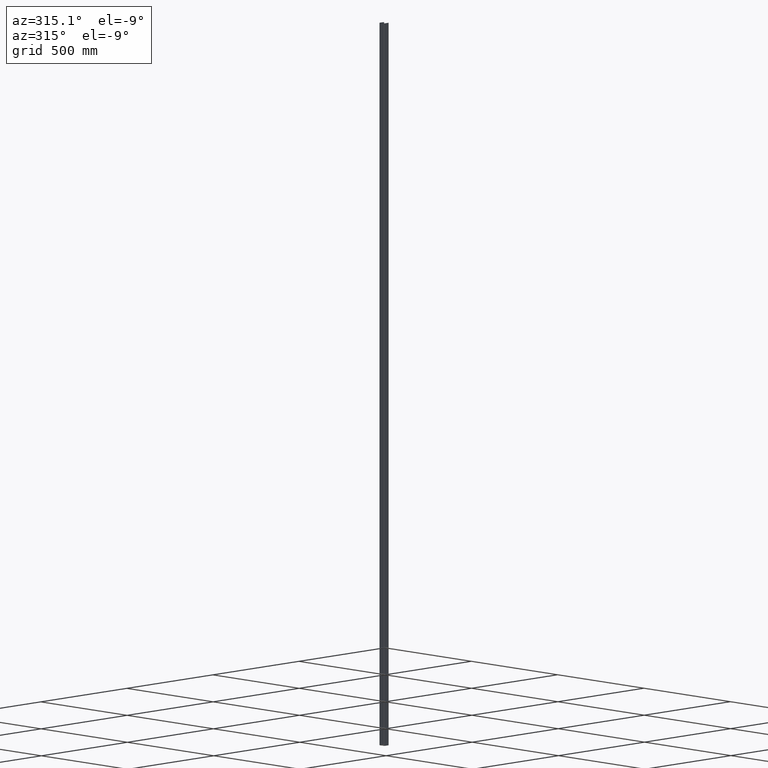
[diagram: clean part render]
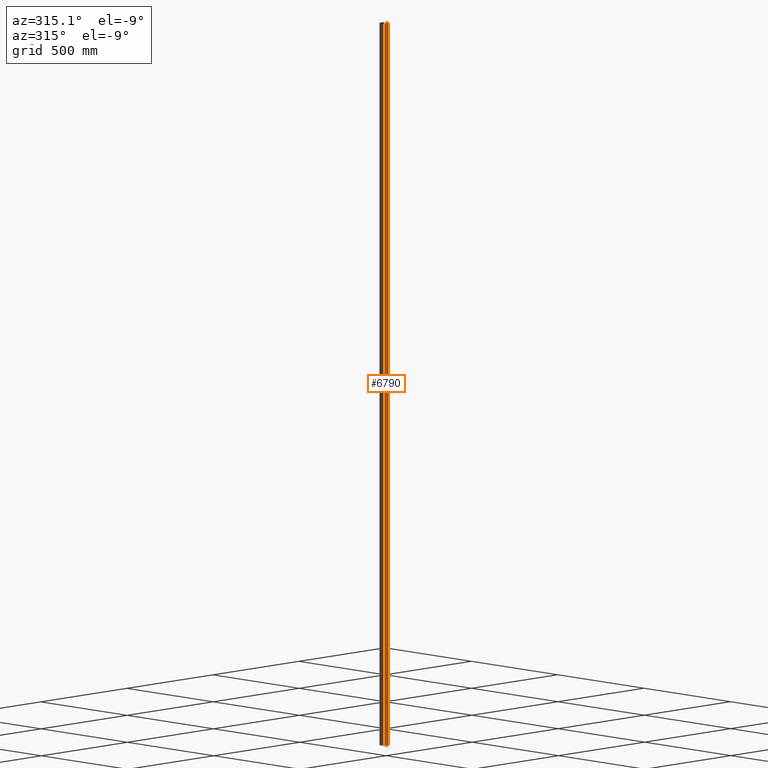
[diagram: same view with one face highlighted and labeled with its STEP entity id]
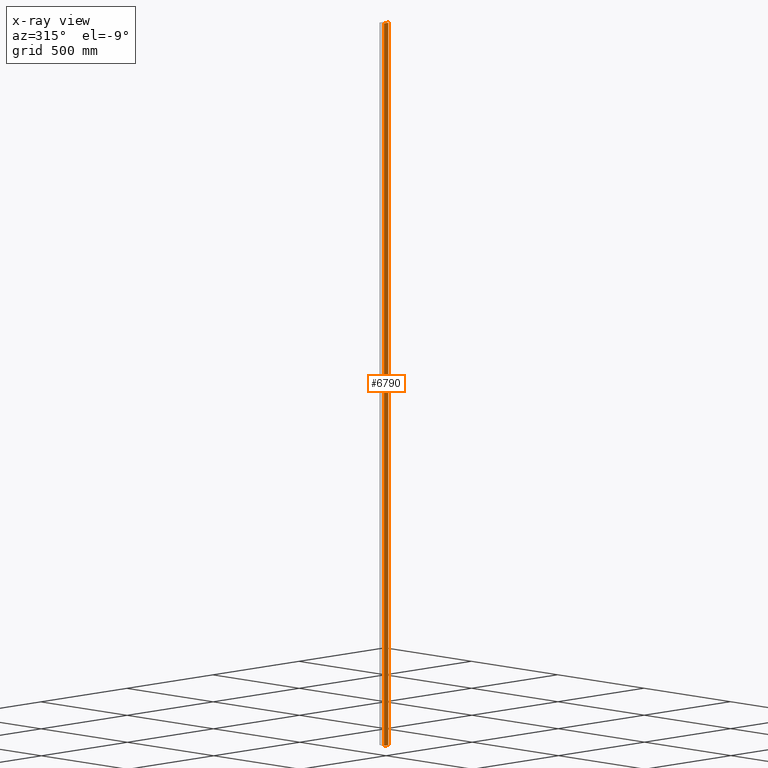
[diagram: x-ray of the same camera — body ghosted, the highlighted face saturated]
A machine part, auxiliary view. The second image highlights one B-rep face of the part: STEP entity #6790.
The next image is the same camera in x-ray: the body ghosted, the highlighted face saturated — about 0% of this face is hidden behind the body in this view.
In plain terms, the highlighted planar face has unit normal (1, 0, -0).
Its self-contained STEP definition (entity closure, byte-faithful):
#510 = VECTOR ( 'NONE', #12719, 1000.000000000000000 ) ;
#1048 = CARTESIAN_POINT ( 'NONE',  ( 12.00000000000000000, 0.5000000000000031086, 1500.000000000000000 ) ) ;
#2604 = EDGE_CURVE ( 'NONE', #8325, #9796, #3773, .T. ) ;
#3560 = CARTESIAN_POINT ( 'NONE',  ( 12.00000000000000000, 0.5000000000000031086, 1500.000000000000000 ) ) ;
#3592 = ORIENTED_EDGE ( 'NONE', *, *, #11584, .F. ) ;
#3773 = LINE ( 'NONE', #12977, #9744 ) ;
#4141 = PLANE ( 'NONE',  #7985 ) ;
#4276 = ORIENTED_EDGE ( 'NONE', *, *, #8765, .T. ) ;
#4388 = EDGE_CURVE ( 'NONE', #8470, #5076, #8716, .T. ) ;
#4793 = DIRECTION ( 'NONE',  ( -0.000000000000000000, -0.000000000000000000, -1.000000000000000000 ) ) ;
#5056 = CARTESIAN_POINT ( 'NONE',  ( 12.00000000000000000, 0.5000000000000031086, -1500.000000000000000 ) ) ;
#5076 = VERTEX_POINT ( 'NONE', #5056 ) ;
#5078 = DIRECTION ( 'NONE',  ( -7.381802025433222780E-17, 1.000000000000000000, 0.000000000000000000 ) ) ;
#5466 = ORIENTED_EDGE ( 'NONE', *, *, #2604, .T. ) ;
#5805 = CARTESIAN_POINT ( 'NONE',  ( 11.99999999999999822, 23.99999999999999645, 1500.000000000000000 ) ) ;
#5957 = FACE_OUTER_BOUND ( 'NONE', #12041, .T. ) ;
#6271 = CARTESIAN_POINT ( 'NONE',  ( 11.99999999999999822, 23.99999999999999645, 1500.000000000000000 ) ) ;
#6790 = ADVANCED_FACE ( 'NONE', ( #5957 ), #4141, .F. ) ;
#6827 = CARTESIAN_POINT ( 'NONE',  ( 11.99999999999999822, 23.99999999999999645, 1500.000000000000000 ) ) ;
#6906 = LINE ( 'NONE', #6827, #9323 ) ;
#6987 = DIRECTION ( 'NONE',  ( 7.381802025433224012E-17, -1.000000000000000000, 0.000000000000000000 ) ) ;
#7187 = ORIENTED_EDGE ( 'NONE', *, *, #4388, .F. ) ;
#7348 = DIRECTION ( 'NONE',  ( 1.000000000000000000, 7.381802025433222780E-17, -0.000000000000000000 ) ) ;
#7488 = CARTESIAN_POINT ( 'NONE',  ( 11.99999999999999822, 23.99999999999999645, -1500.000000000000000 ) ) ;
#7985 = AXIS2_PLACEMENT_3D ( 'NONE', #6271, #7348, #5078 ) ;
#8197 = VECTOR ( 'NONE', #6987, 1000.000000000000000 ) ;
#8325 = VERTEX_POINT ( 'NONE', #5805 ) ;
#8470 = VERTEX_POINT ( 'NONE', #1048 ) ;
#8716 = LINE ( 'NONE', #3560, #510 ) ;
#8765 = EDGE_CURVE ( 'NONE', #9796, #5076, #10291, .T. ) ;
#9005 = CARTESIAN_POINT ( 'NONE',  ( 11.99999999999999822, 23.99999999999999645, -1500.000000000000000 ) ) ;
#9323 = VECTOR ( 'NONE', #12954, 1000.000000000000000 ) ;
#9744 = VECTOR ( 'NONE', #4793, 1000.000000000000000 ) ;
#9796 = VERTEX_POINT ( 'NONE', #7488 ) ;
#10291 = LINE ( 'NONE', #9005, #8197 ) ;
#11584 = EDGE_CURVE ( 'NONE', #8325, #8470, #6906, .T. ) ;
#12041 = EDGE_LOOP ( 'NONE', ( #4276, #7187, #3592, #5466 ) ) ;
#12719 = DIRECTION ( 'NONE',  ( -0.000000000000000000, -0.000000000000000000, -1.000000000000000000 ) ) ;
#12954 = DIRECTION ( 'NONE',  ( 7.381802025433224012E-17, -1.000000000000000000, 0.000000000000000000 ) ) ;
#12977 = CARTESIAN_POINT ( 'NONE',  ( 11.99999999999999822, 23.99999999999999645, 1500.000000000000000 ) ) ;